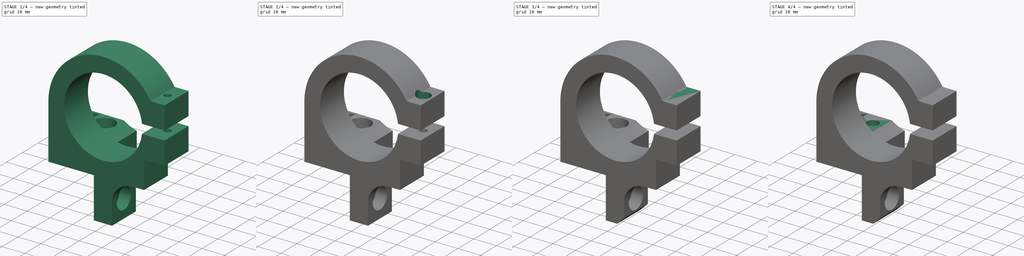
[diagram: build sequence overview — one tinted view per stage of 4, left to right]
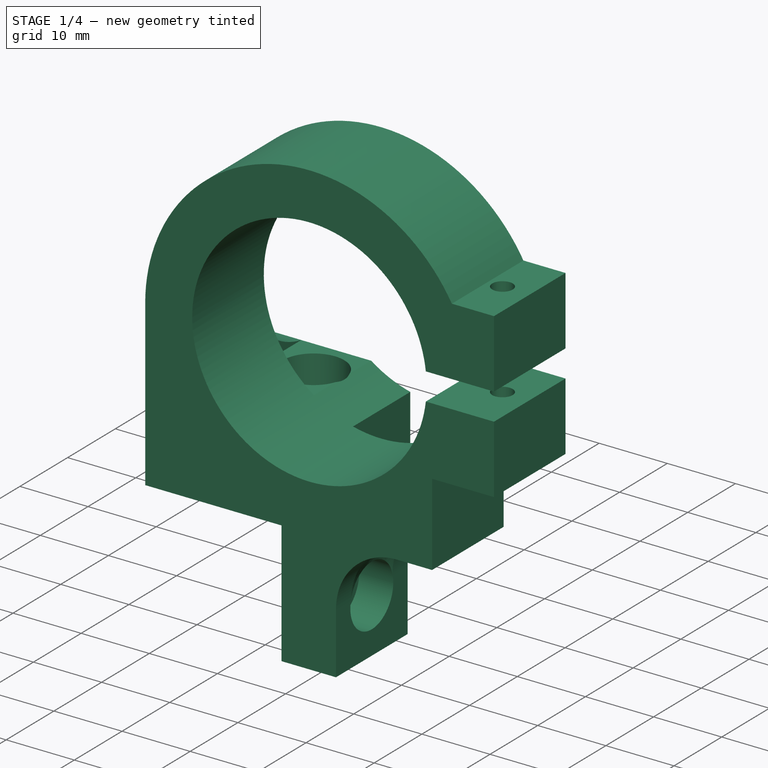
[diagram: stage 1 of 4 — iso view after this stage's code; geometry added in this stage tinted green]
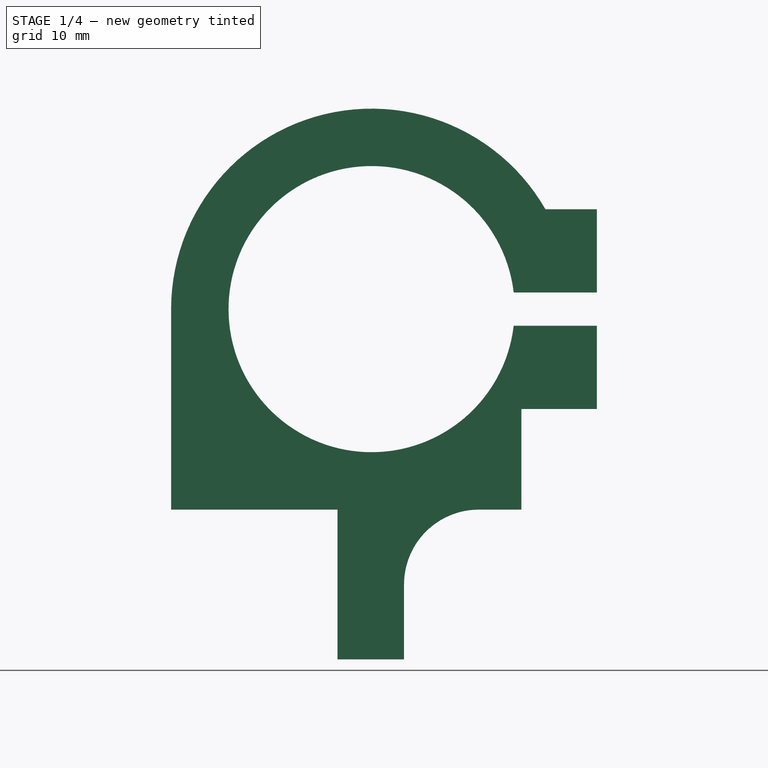
[diagram: stage 1 of 4 — front view after this stage's code; geometry added in this stage tinted green]
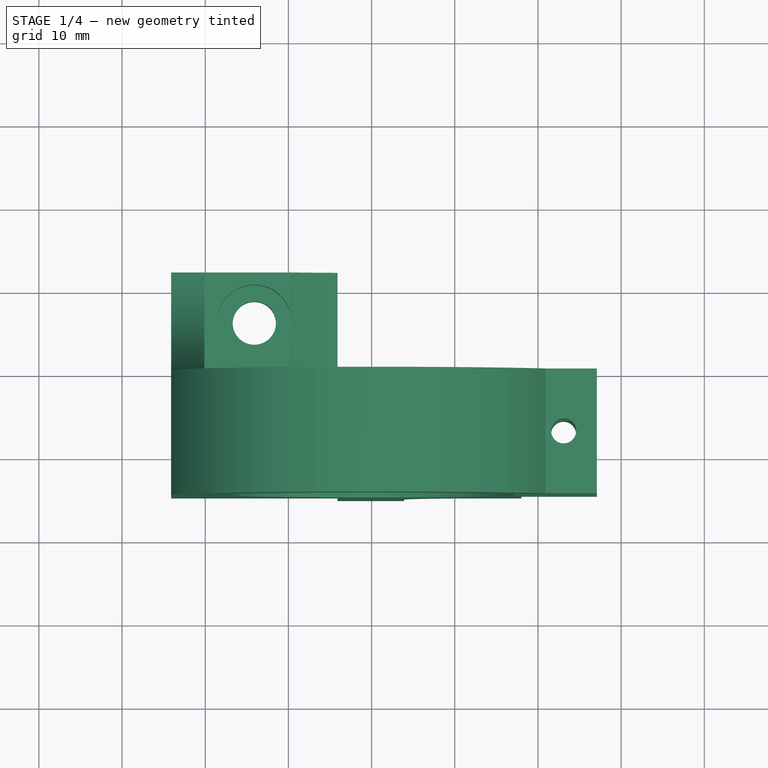
[diagram: stage 1 of 4 — top view after this stage's code; geometry added in this stage tinted green]
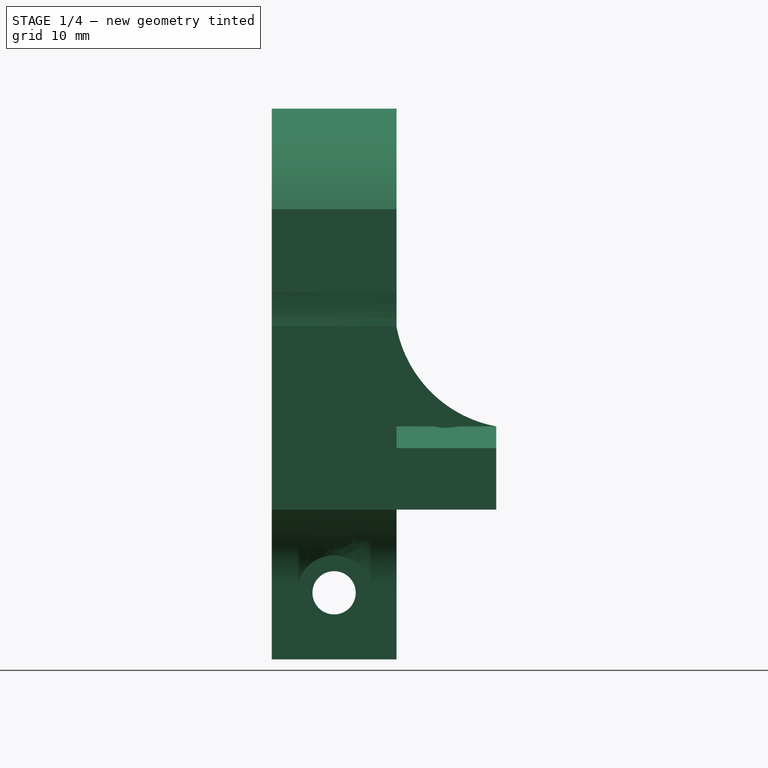
[diagram: stage 1 of 4 — right view after this stage's code; geometry added in this stage tinted green]
FCSTD DOCUMENT  (FreeCAD 0.15R4671 (Git))
Label: motor_Mount
License: CC-BY 3.0
LicenseURL: http://creativecommons.org/licenses/by/3.0/
objects: Sketcher::SketchObject×11, PartDesign::Pocket×7, PartDesign::Pad×4, PartDesign::Fillet×2, PartDesign::Chamfer×1
note: 36 computed .brp shape members not serialized (recipe doc carries the construction recipe); baked Part::Feature solids carry a one-line shape summary decoded from their .brp

FEATURE [Sketcher::SketchObject] Sketch002  label="holdingScrewHoleSketch"
  ExternalGeometry = -> [Fillet]
  Placement = pos=(0,0,36.1002) rot=(0,0,1;3.14159rad)
  Support = -> Fillet [Face13]
  sketch-geometry (1):
    g0: Circle CenterX=-23.0833 CenterY=7.5 CenterZ=0 NormalX=0 NormalY=0 NormalZ=1 Radius=1.5
  constraints (3):
    c: Radius(g0) = 1.5
    c: DistanceY(g-3,g0) = 7.5
    c: DistanceX(g0,g-3) = -4
FEATURE [Sketcher::SketchObject] Sketch003  label="holdingScrewCountersinkSketch"
  Placement = pos=(0,0,36.1002) rot=(0,0,1;3.14159rad)
  Support = -> Pocket004 [Face13]
  sketch-geometry (1):
    g0: Circle CenterX=-23.0833 CenterY=7.5 CenterZ=0 NormalX=0 NormalY=0 NormalZ=1 Radius=3
  constraints (1):
    c: Radius(g0) = 3
FEATURE [Sketcher::SketchObject] Sketch004  label="holdingScrewNutSketch"
  Placement = pos=(0,0,12.1002) rot=(1,0,0;3.14159rad)
  Support = -> Pocket005 [Face5]
  sketch-geometry (7):
    g0: Circle [constr] CenterX=23.0833 CenterY=7.5 CenterZ=0 NormalX=0 NormalY=0 NormalZ=1 Radius=3.3
    g1: LineSegment StartX=20.2254 StartY=5.85 StartZ=0 EndX=20.2254 EndY=9.15 EndZ=0
    g2: LineSegment StartX=20.2254 StartY=9.15 StartZ=0 EndX=23.0833 EndY=10.8 EndZ=0
    g3: LineSegment StartX=23.0833 StartY=10.8 StartZ=0 EndX=25.9412 EndY=9.15 EndZ=0
    g4: LineSegment StartX=25.9412 StartY=9.15 StartZ=0 EndX=25.9412 EndY=5.85 EndZ=0
    g5: LineSegment StartX=25.9412 StartY=5.85 StartZ=0 EndX=23.0833 EndY=4.2 EndZ=0
    g6: LineSegment StartX=23.0833 StartY=4.2 StartZ=0 EndX=20.2254 EndY=5.85 EndZ=0
  constraints (20):
    c: Radius(g0) = 3.3
    c: Vertical(g1)
    c: Coincident(g1,g2)
    c: Coincident(g2,g3)
    c: Coincident(g3,g4)
    c: Coincident(g4,g5)
    c: Coincident(g5,g6)
    c: Coincident(g6,g1)
    c: Vertical(g4)
    c: PointOnObject(g1,g0)
    c: PointOnObject(g2,g0)
    c: PointOnObject(g3,g0)
    c: PointOnObject(g4,g0)
    c: PointOnObject(g5,g0)
    c: PointOnObject(g1,g0)
    c: Equal(g1,g2)
    c: Equal(g2,g3)
    c: Equal(g3,g4)
    c: Equal(g4,g5)
    c: Equal(g5,g6)
FEATURE [Sketcher::SketchObject] Sketch007  label="verticalMountCountersinkSketch"
  ExternalGeometry = -> [Pocket003]
  Placement = pos=(0,0,10) rot=(0,0,1;3.14159rad)
  Support = -> Pocket003 [Face11]
  sketch-geometry (1):
    g0: Circle CenterX=14.1002 CenterY=-6 CenterZ=0 NormalX=0 NormalY=0 NormalZ=1 Radius=4.5
  constraints (2):
    c: Radius(g0) = 4.5
    c: Coincident(g0,g-3)
FEATURE [PartDesign::Pocket] Pocket001  label="verticalMountCountersink"
  Length = 5
  Placement = pos=(0,0,0) rot=(1,0,0;1.5708rad)
  Sketch = -> Sketch007
  Type = 0
FEATURE [Sketcher::SketchObject] Sketch008  label="verticalMountFilletSketch"
  Placement = pos=(-24.1002,0,0) rot=(0.707107,0,-0.707107;3.14159rad)
  Support = -> Pocket001 [Face18]
  sketch-geometry (3):
    g0: LineSegment StartX=-10 StartY=1e-12 StartZ=0 EndX=-22 EndY=1e-12 EndZ=0
    g1: LineSegment StartX=-10 StartY=-12 StartZ=0 EndX=-10 EndY=1e-12 EndZ=0
    g2: ArcOfCircle CenterX=-24.7464 CenterY=-14.7464 CenterZ=0 NormalX=0 NormalY=0 NormalZ=1 Radius=15 StartAngle=0.184134 EndAngle=1.38666
  constraints (6):
    c: Horizontal(g0)
    c: Coincident(g1,g0)
    c: Coincident(g2,g0)
    c: Coincident(g2,g1)
    c: Equal(g0,g1)
    c: Radius(g2) = 15
FEATURE [PartDesign::Pad] Pad002  label="verticalMountFillet"
  Length = 4
  Length2 = 10
  Placement = pos=(0,0,0) rot=(1,0,0;1.5708rad)
  Reversed = true
  Sketch = -> Sketch008
  Type = 0
FEATURE [Sketcher::SketchObject] Sketch009  label="horizontalMountSketch"
  ExternalGeometry = -> [Pad002]
  Placement = pos=(0,0,0) rot=(1,0,0;3.14159rad)
  Support = -> Pad002 [Face12]
  sketch-geometry (4):
    g0: LineSegment StartX=-4.10016 StartY=15 StartZ=0 EndX=3.89984 EndY=15 EndZ=0
    g1: LineSegment StartX=3.89984 StartY=15 StartZ=0 EndX=3.89984 EndY=0 EndZ=0
    g2: LineSegment StartX=3.89984 StartY=0 StartZ=0 EndX=-4.10016 EndY=0 EndZ=0
    g3: LineSegment StartX=-4.10016 StartY=0 StartZ=0 EndX=-4.10016 EndY=15 EndZ=0
  constraints (11):
    c: Coincident(g0,g1)
    c: Coincident(g1,g2)
    c: Coincident(g2,g3)
    c: Coincident(g3,g0)
    c: Horizontal(g0)
    c: Horizontal(g2)
    c: Vertical(g1)
    c: Vertical(g3)
    c: Coincident(g2,g-3)
    c: PointOnObject(g0,g-4)
    c: DistanceX(g0) = 8
FEATURE [PartDesign::Pad] Pad003  label="horizontalMount"
  Length = 18
  Length2 = 10
  Placement = pos=(0,0,0) rot=(1,0,0;1.5708rad)
  Sketch = -> Sketch009
  Type = 0
FEATURE [Sketcher::SketchObject] Sketch010  label="horizontalMountSketch001"
  Placement = pos=(3.89984,0,0) rot=(0.707107,0,0.707107;3.14159rad)
  Support = -> Pad003 [Face28]
  sketch-geometry (1):
    g0: Circle CenterX=-10 CenterY=7.5 CenterZ=0 NormalX=0 NormalY=0 NormalZ=1 Radius=2.6
  constraints (3):
    c: DistanceX(g-1,g0) = -10
    c: Radius(g0) = 2.6
    c: DistanceY(g-1,g0) = 7.5
FEATURE [PartDesign::Pocket] Pocket002  label="horizontalMountHole"
  Length = 5
  Placement = pos=(0,0,0) rot=(1,0,0;1.5708rad)
  Sketch = -> Sketch010
  Type = 2
FEATURE [Sketcher::SketchObject] Sketch011  label="horizontalCountersinkSketch"
  ExternalGeometry = -> [Pocket002]
  Placement = pos=(3.89984,0,0) rot=(0.707107,0,0.707107;3.14159rad)
  Support = -> Pocket002 [Face28]
  sketch-geometry (1):
    g0: Circle CenterX=-10 CenterY=7.5 CenterZ=0 NormalX=0 NormalY=0 NormalZ=1 Radius=4.5
  constraints (2):
    c: Coincident(g0,g-3)
    c: Radius(g0) = 4.5
FEATURE [PartDesign::Pocket] Pocket003  label="horizontalCountersink"
  Length = 5
  Placement = pos=(0,0,0) rot=(1,0,0;1.5708rad)
  Sketch = -> Sketch011
  Type = 0
FEATURE [PartDesign::Fillet] Fillet  label="horizontalMountFillet"
  Base = -> Pocket003 [Edge58]
  Placement = pos=(0,0,0) rot=(1,0,0;1.5708rad)
  Radius = 9
FEATURE [PartDesign::Pocket] Pocket004  label="holdingScrewHole"
  Length = 5
  Placement = pos=(0,0,0) rot=(1,0,0;1.5708rad)
  Sketch = -> Sketch002
  Type = 1
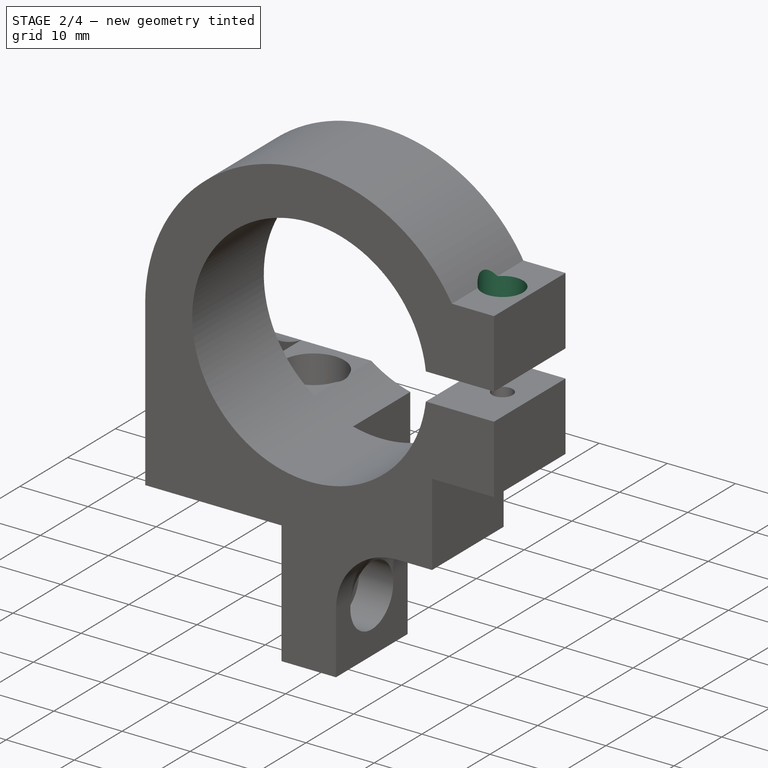
[diagram: stage 2 of 4 — iso view after this stage's code; geometry added in this stage tinted green]
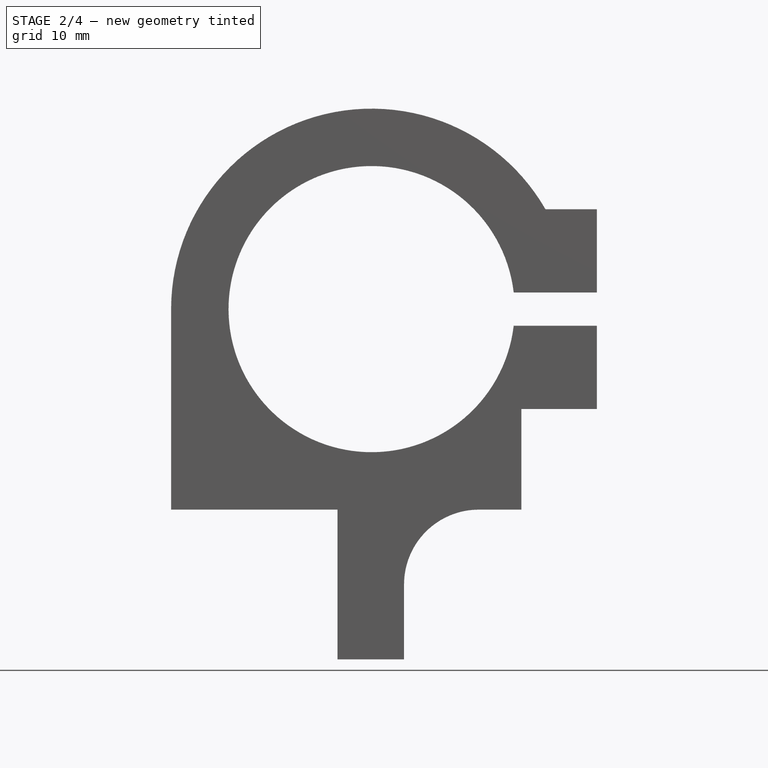
[diagram: stage 2 of 4 — front view after this stage's code; geometry added in this stage tinted green]
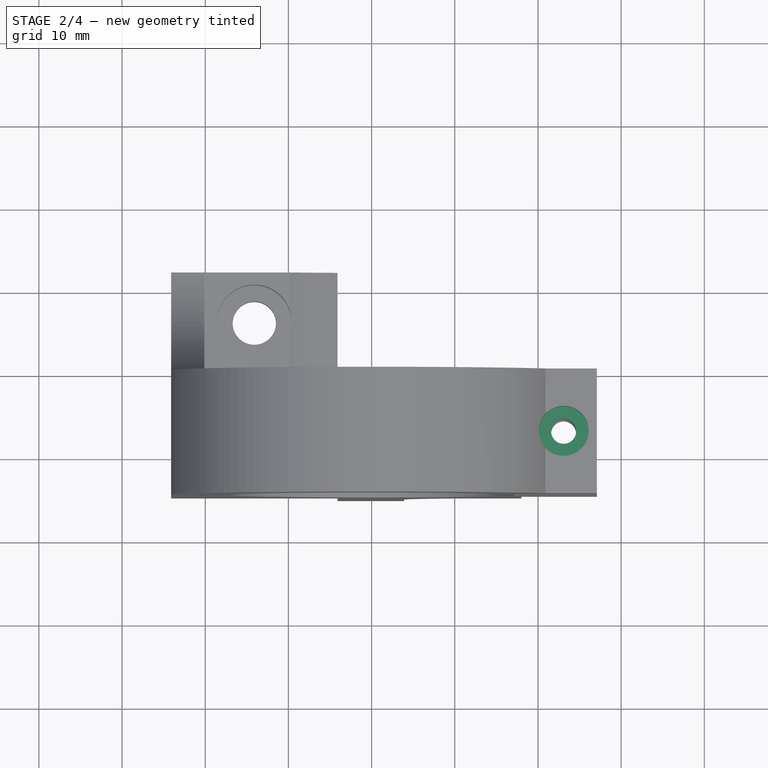
[diagram: stage 2 of 4 — top view after this stage's code; geometry added in this stage tinted green]
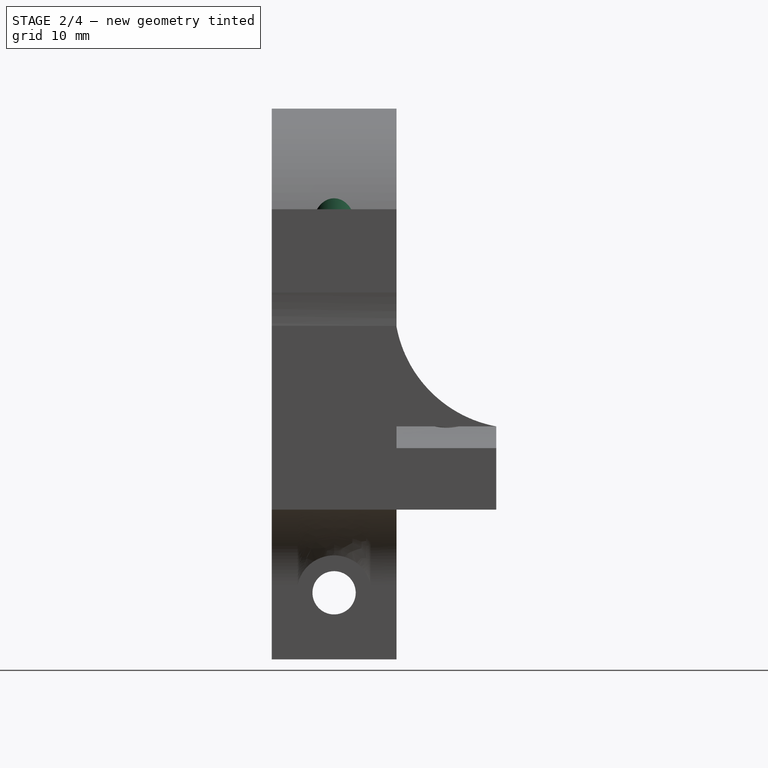
[diagram: stage 2 of 4 — right view after this stage's code; geometry added in this stage tinted green]
FEATURE [PartDesign::Pocket] Pocket005  label="holdingScrewCountersink"
  Length = 6
  Midplane = true
  Placement = pos=(0,0,0) rot=(1,0,0;1.5708rad)
  Sketch = -> Sketch003
  Type = 0
FEATURE [PartDesign::Pocket] Pocket006  label="holdingScrewNut"
  Length = 3
  Placement = pos=(0,0,0) rot=(1,0,0;1.5708rad)
  Sketch = -> Sketch004
  Type = 0
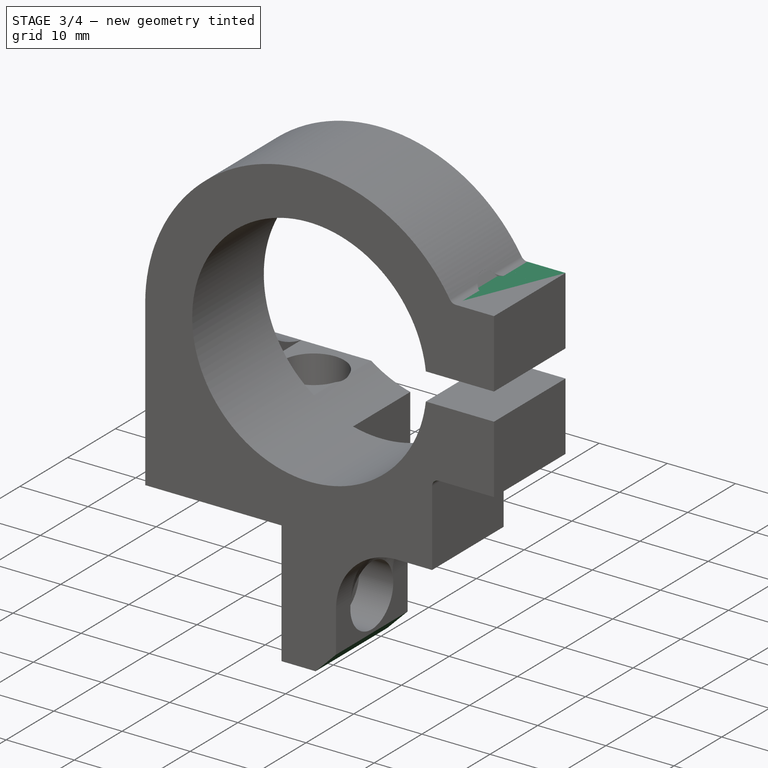
[diagram: stage 3 of 4 — iso view after this stage's code; geometry added in this stage tinted green]
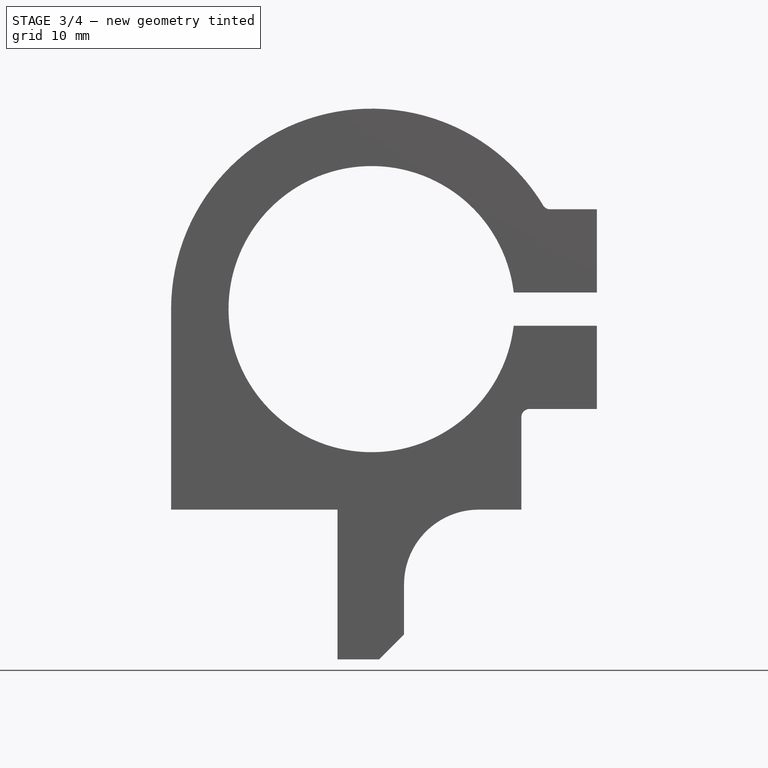
[diagram: stage 3 of 4 — front view after this stage's code; geometry added in this stage tinted green]
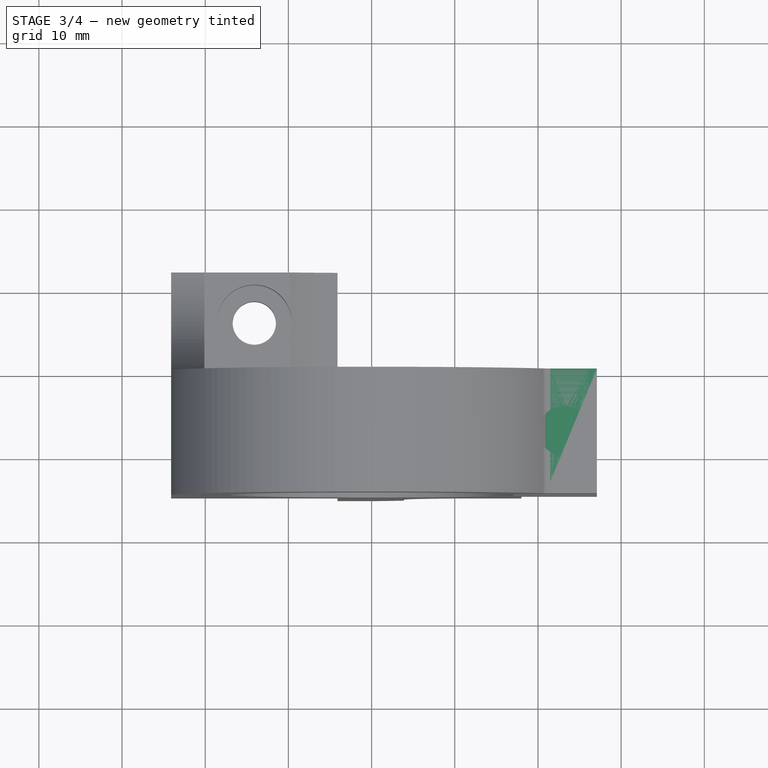
[diagram: stage 3 of 4 — top view after this stage's code; geometry added in this stage tinted green]
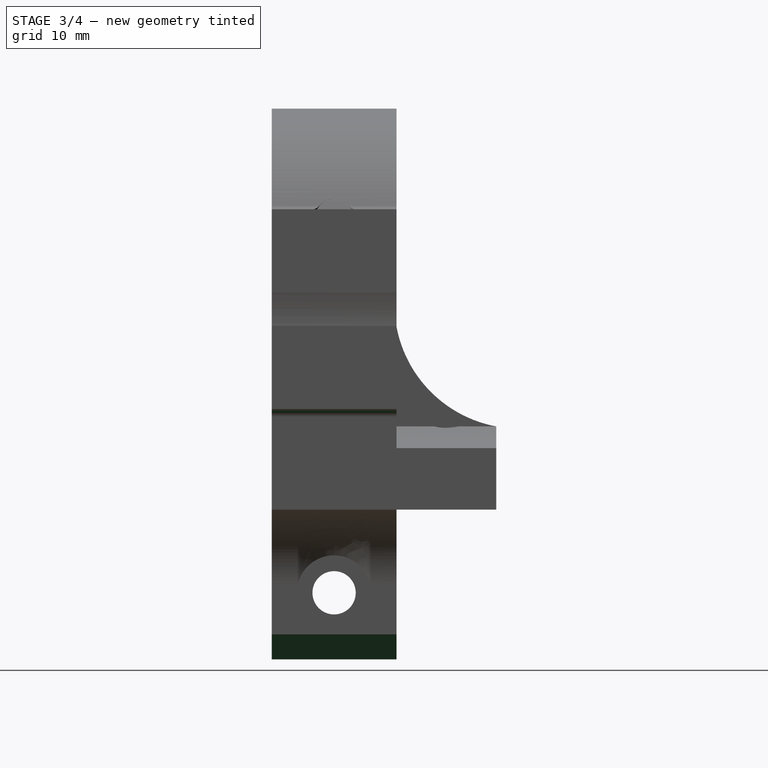
[diagram: stage 3 of 4 — right view after this stage's code; geometry added in this stage tinted green]
FEATURE [Sketcher::SketchObject] Sketch  label="mainSketch"
  Placement = pos=(0,0,0) rot=(1,0,0;1.5708rad)
  sketch-geometry (14):
    g0: ArcOfCircle CenterX=0 CenterY=24.1002 CenterZ=0 NormalX=0 NormalY=0 NormalZ=1 Radius=24.1002 StartAngle=0.521201 EndAngle=3.14159
    g1: LineSegment StartX=-24.1002 StartY=0 StartZ=0 EndX=-24.1002 EndY=24.1002 EndZ=0
    g2: ArcOfCircle CenterX=0 CenterY=24.1002 CenterZ=0 NormalX=0 NormalY=0 NormalZ=1 Radius=17.2 StartAngle=0.116543 EndAngle=6.16664
    g3: LineSegment StartX=17.0833 StartY=22.1002 StartZ=0 EndX=27.0833 EndY=22.1002 EndZ=0
    g4: LineSegment StartX=27.0833 StartY=22.1002 StartZ=0 EndX=27.0833 EndY=12.1002 EndZ=0
    g5: LineSegment StartX=27.0833 StartY=26.1002 StartZ=0 EndX=27.0833 EndY=36.1002 EndZ=0
    g6: LineSegment StartX=27.0833 StartY=36.1002 StartZ=0 EndX=20.9002 EndY=36.1002 EndZ=0
    g7: LineSegment StartX=27.0833 StartY=26.1002 StartZ=0 EndX=17.0833 EndY=26.1002 EndZ=0
    g8: LineSegment StartX=18 StartY=12.1002 StartZ=0 EndX=27.0833 EndY=12.1002 EndZ=0
    g9: LineSegment StartX=18 StartY=12.1002 StartZ=0 EndX=18 EndY=0 EndZ=0
    g10: LineSegment StartX=-24.1002 StartY=0 StartZ=0 EndX=0 EndY=0 EndZ=0
    g11: LineSegment StartX=0 StartY=0 StartZ=0 EndX=18 EndY=0 EndZ=0
    g12: LineSegment [constr] StartX=-14.1002 StartY=0 StartZ=0 EndX=-14.1002 EndY=10 EndZ=0
    g13: LineSegment [constr] StartX=-18.3502 StartY=10 StartZ=0 EndX=-9.85016 EndY=10 EndZ=0
  constraints (45):
    c: PointOnObject(g0,g-2)
    c: PointOnObject(g-1,g0)
    c: Coincident(g2,g0)
    c: Horizontal(g3)
    c: Coincident(g2,g3)
    c: Vertical(g4)
    c: Coincident(g3,g4)
    c: Vertical(g5)
    c: Coincident(g5,g6)
    c: Coincident(g0,g6)
    c: Coincident(g7,g5)
    c: Coincident(g7,g2)
    c: Coincident(g0,g1)
    c: Horizontal(g6)
    c: Horizontal(g8)
    c: Coincident(g4,g8)
    c: PointOnObject(g10,g-2)
    c: Horizontal(g10)
    c: Coincident(g1,g10)
    c: PointOnObject(g1,g-1)
    c: Coincident(g11,g-1)
    c: Coincident(g11,g9)
    c: Horizontal(g11)
    c: Coincident(g8,g9)
    c: Vertical(g9)
    c: Vertical(g1)
    c: PointOnObject(g12,g10)
    c: Vertical(g12)
    c: DistanceX(g12,g1) = -10
    c: DistanceY(g12) = 10
    c: Horizontal(g13)
    c: PointOnObject(g12,g13)
    c: Symmetric(g13,g13,g12)
    c: DistanceX(g13) = 8.5
    c: PointOnObject(g13,g2)
    c: Horizontal(g7)
    c: Radius(g2) = 17.2
    c: DistanceY(g2,g0) = 2
    c: DistanceY(g5,g3) = -4
    c: DistanceX(g7) = -10
    c: Tangent(g5,g4)
    c: DistanceX(g11) = 18
    c: DistanceY(g5) = 10
    c: DistanceY(g4) = -10
    c: Tangent(g1,g0)
FEATURE [PartDesign::Pad] Pad  label="Main"
  Length = 15
  Length2 = 5
  Placement = pos=(0,0,0) rot=(1,0,0;1.5708rad)
  Sketch = -> Sketch
  Type = 0
FEATURE [PartDesign::Chamfer] Chamfer
  Base = -> Pocket006 [Edge76]
  Placement = pos=(0,0,0) rot=(1,0,0;1.5708rad)
  Size = 3
FEATURE [PartDesign::Fillet] Fillet001
  Base = -> Chamfer [Edge53,Edge85,Edge46,Edge50,Edge79,Edge76]
  Placement = pos=(0,0,0) rot=(1,0,0;1.5708rad)
  Radius = 1
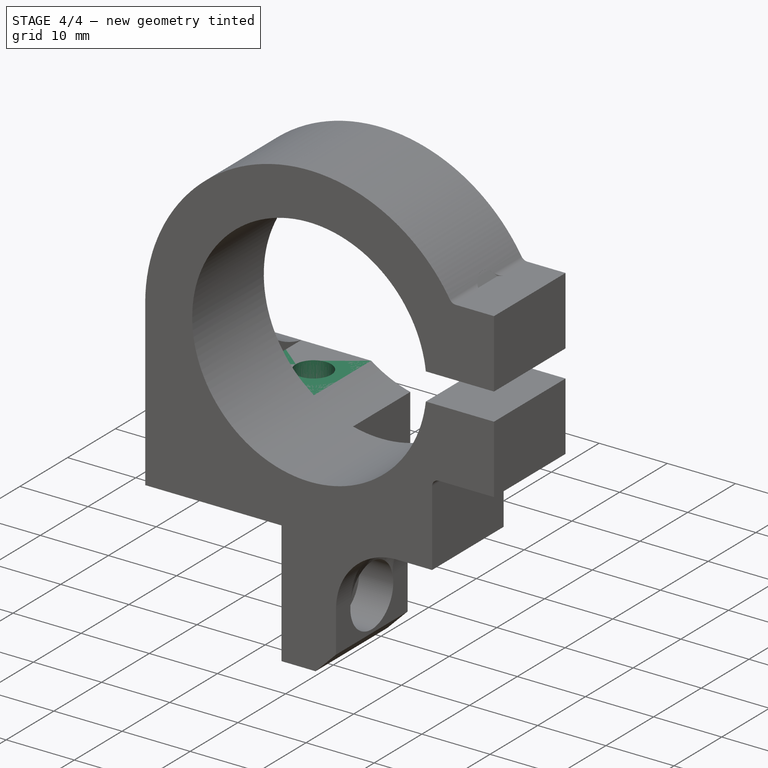
[diagram: stage 4 of 4 — iso view after this stage's code; geometry added in this stage tinted green]
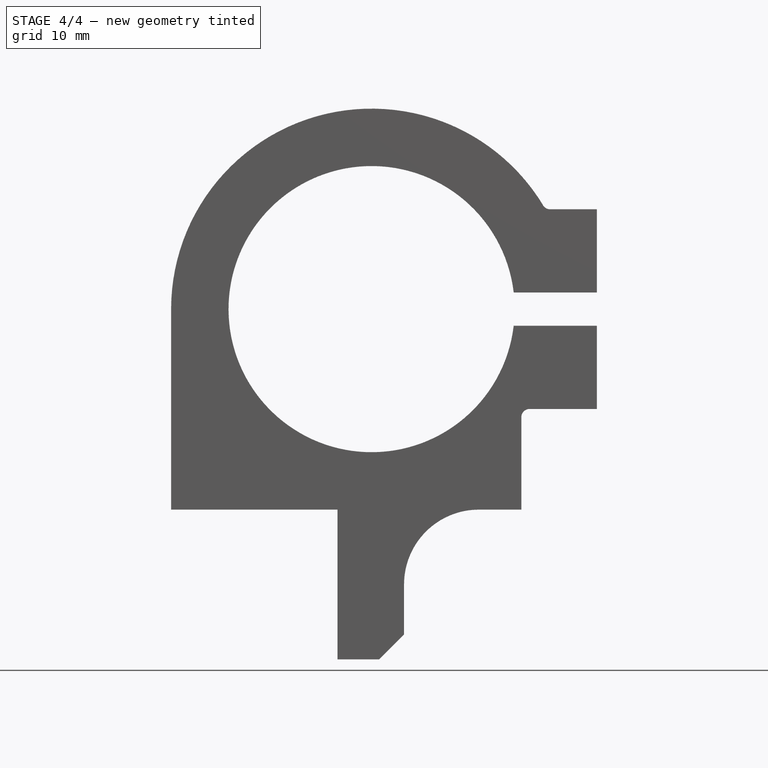
[diagram: stage 4 of 4 — front view after this stage's code; geometry added in this stage tinted green]
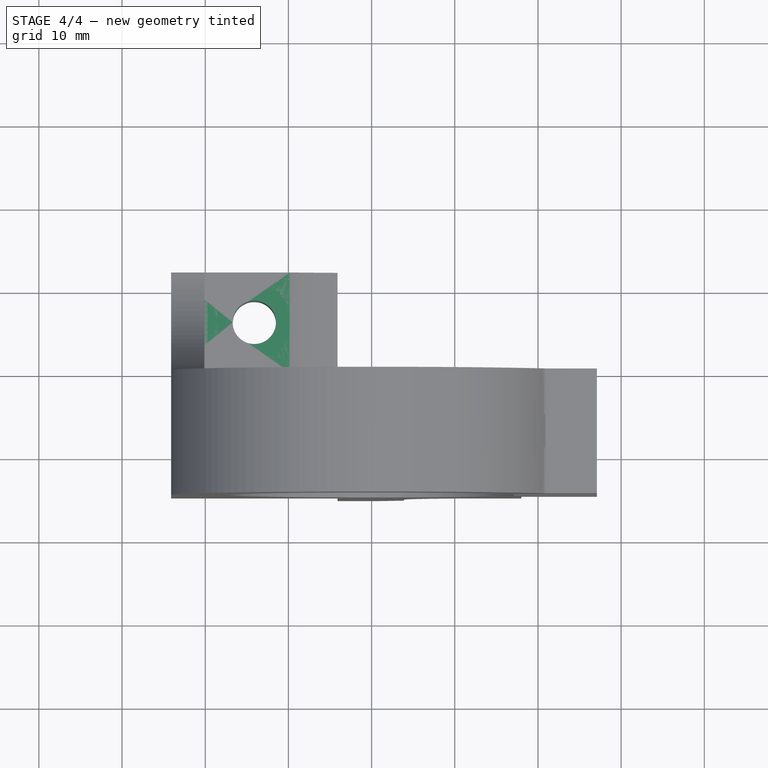
[diagram: stage 4 of 4 — top view after this stage's code; geometry added in this stage tinted green]
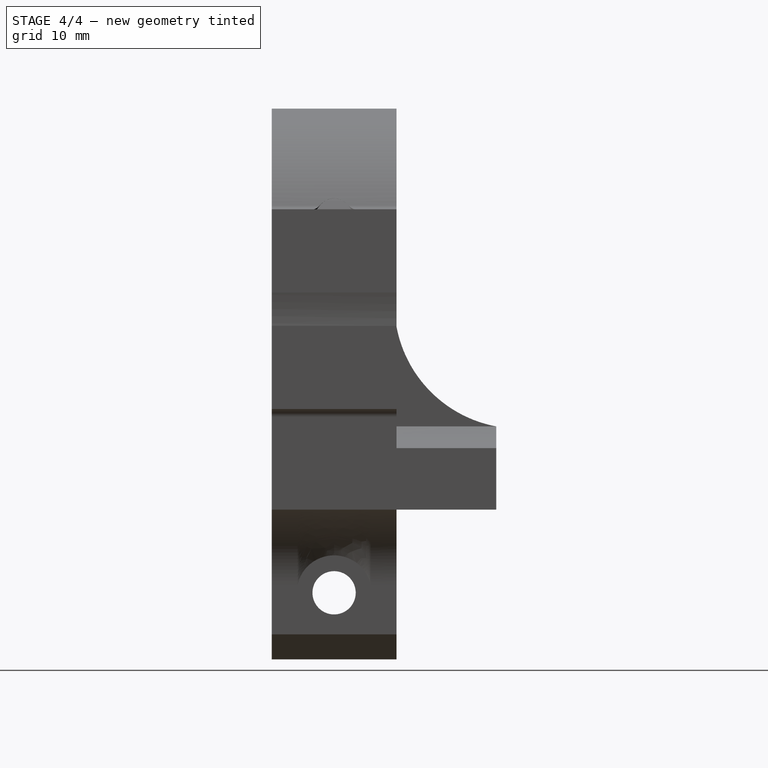
[diagram: stage 4 of 4 — right view after this stage's code; geometry added in this stage tinted green]
FEATURE [Sketcher::SketchObject] Sketch005  label="verticalMountSketch"
  ExternalGeometry = -> [Pad]
  Placement = pos=(0,0,0) rot=(-1,0,0;1.5708rad)
  Support = -> Pad [Face13]
  sketch-geometry (5):
    g0: LineSegment StartX=-24.1002 StartY=0 StartZ=0 EndX=-4.10016 EndY=0 EndZ=0
    g1: LineSegment StartX=-4.10016 StartY=0 StartZ=0 EndX=-4.10016 EndY=-7.396 EndZ=0
    g2: LineSegment StartX=-9.85016 StartY=-10 StartZ=0 EndX=-24.1002 EndY=-10 EndZ=0
    g3: LineSegment StartX=-24.1002 StartY=-10 StartZ=0 EndX=-24.1002 EndY=0 EndZ=0
    g4: ArcOfCircle CenterX=0 CenterY=-24.1002 CenterZ=0 NormalX=0 NormalY=0 NormalZ=1 Radius=17.2 StartAngle=1.81149 EndAngle=2.18057
  constraints (14):
    c: Coincident(g0,g1)
    c: Coincident(g2,g3)
    c: Coincident(g3,g0)
    c: Horizontal(g0)
    c: Horizontal(g2)
    c: Vertical(g1)
    c: Vertical(g3)
    c: Coincident(g0,g-3)
    c: DistanceX(g0) = 20
    c: Coincident(g4,g-4)
    c: Equal(g4,g-4)
    c: Coincident(g1,g4)
    c: Coincident(g2,g4)
    c: DistanceY(g3) = 10
FEATURE [PartDesign::Pad] Pad001  label="verticalMount"
  Length = 12
  Length2 = 10
  Placement = pos=(0,0,0) rot=(1,0,0;1.5708rad)
  Sketch = -> Sketch005
  Type = 0
FEATURE [Sketcher::SketchObject] Sketch006  label="verticalMountHoleSketch"
  ExternalGeometry = -> [Pad001]
  Placement = pos=(0,0,10) rot=(0,0,1;3.14159rad)
  Support = -> Pad001 [Face9]
  sketch-geometry (1):
    g0: Circle CenterX=14.1002 CenterY=-6 CenterZ=0 NormalX=0 NormalY=0 NormalZ=1 Radius=2.6
  constraints (3):
    c: Radius(g0) = 2.6
    c: DistanceX(g-3,g0) = -10
    c: DistanceY(g0,g-3) = 6
FEATURE [PartDesign::Pocket] Pocket  label="verticalMountHole"
  Length = 5
  Placement = pos=(0,0,0) rot=(1,0,0;1.5708rad)
  Sketch = -> Sketch006
  Type = 1
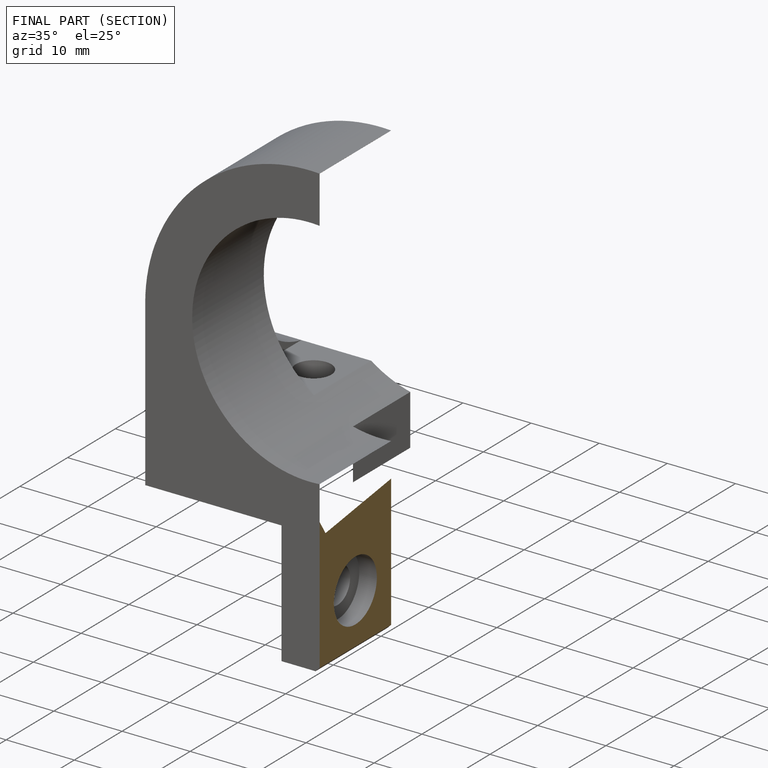
[diagram: finished part — half-section view (interior)]
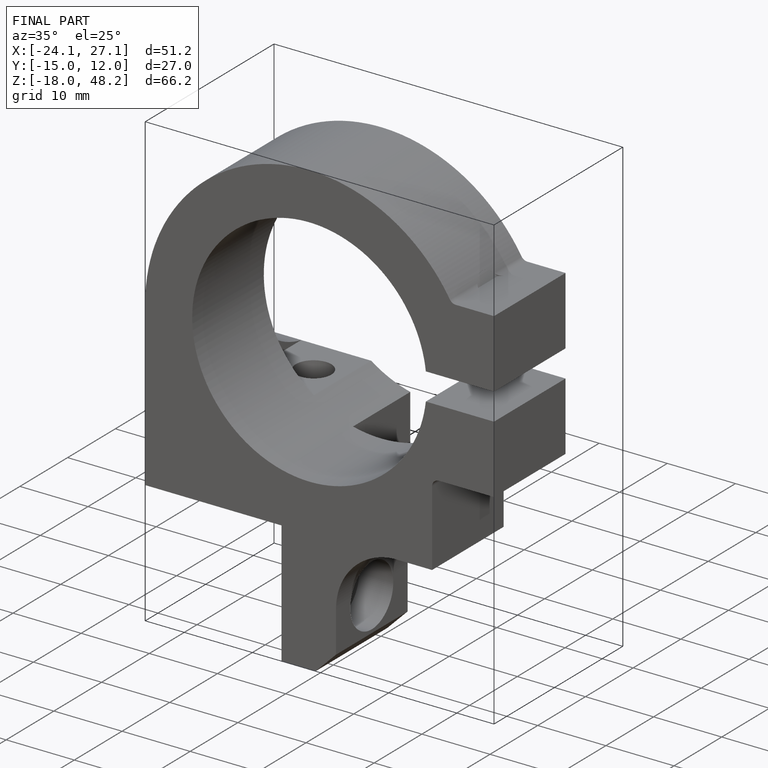
[diagram: finished part — iso view with bounding-box wireframe]
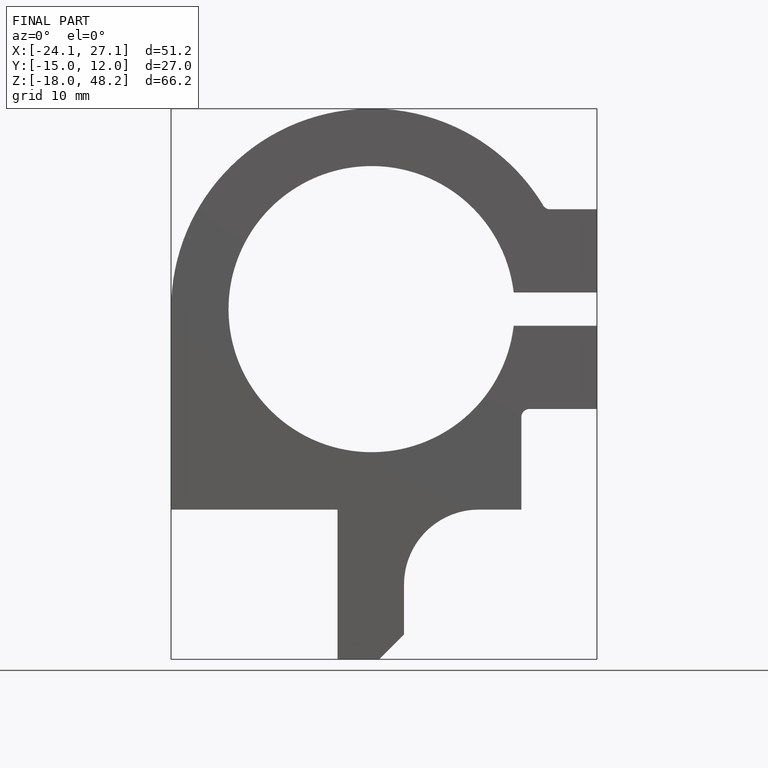
[diagram: finished part — front view with bounding-box wireframe]
